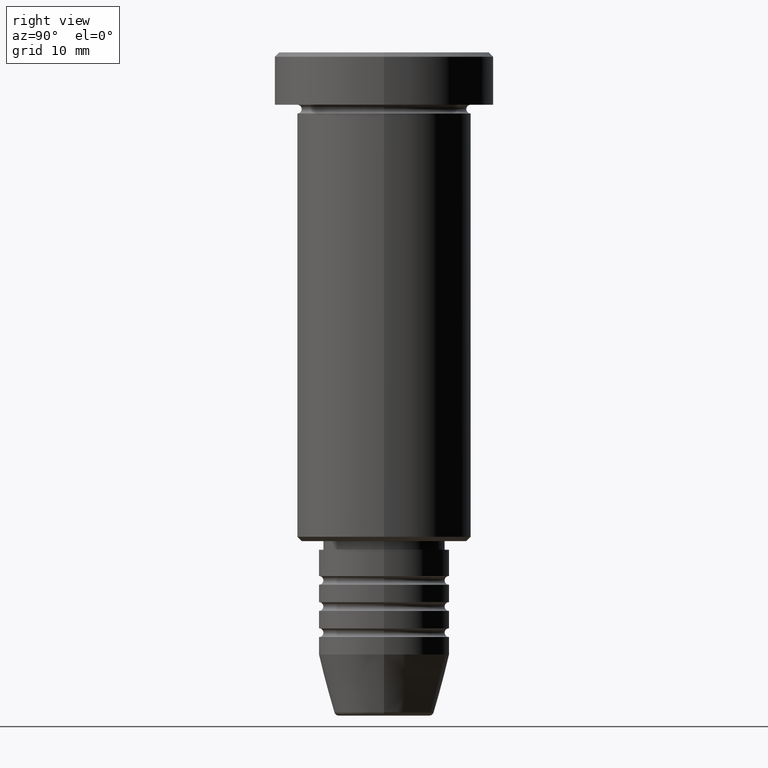
[diagram: clean part render]
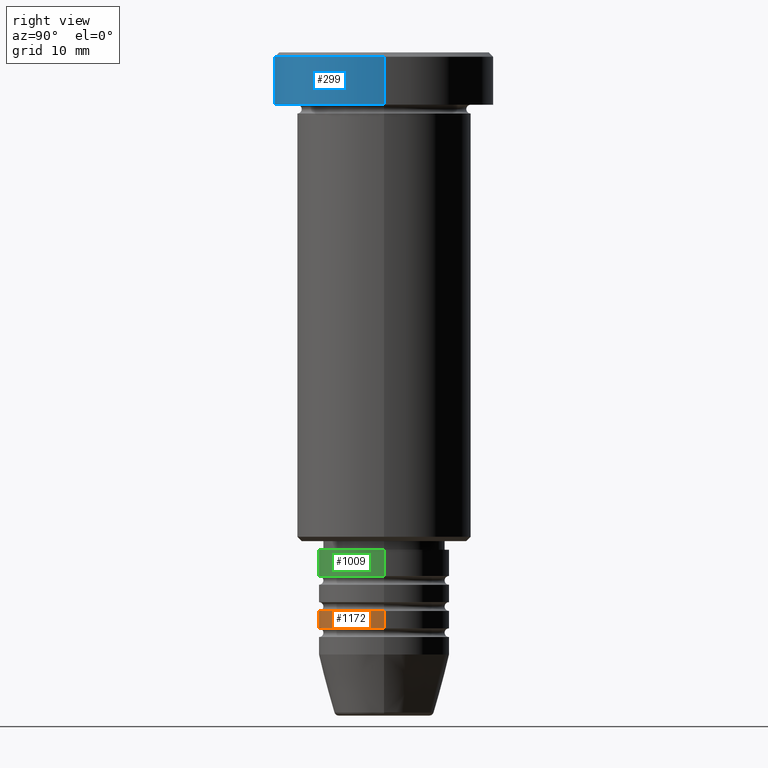
[diagram: same view with three faces highlighted in distinct colors, each labeled with its STEP entity id]
A machine part, right view with three faces highlighted in distinct colors.
Their STEP definitions:

[orange] entity #1172 — the highlighted cylindrical surface (partial cylindrical patch) has radius 7.5 mm, axis along (-0, -0, 1).
#13 = LINE ( 'NONE', #265, #1153 ) ;
#82 = DIRECTION ( 'NONE',  ( 1.000000000000000000, 0.000000000000000000, 0.000000000000000000 ) ) ;
#109 = CARTESIAN_POINT ( 'NONE',  ( 0.000000000000000000, 0.000000000000000000, -63.99999999999998579 ) ) ;
#161 = DIRECTION ( 'NONE',  ( -0.000000000000000000, -0.000000000000000000, 1.000000000000000000 ) ) ;
#165 = CARTESIAN_POINT ( 'NONE',  ( -7.500000000000000000, 9.184850993605147944E-16, -65.99999999999998579 ) ) ;
#172 = DIRECTION ( 'NONE',  ( -0.000000000000000000, -0.000000000000000000, 1.000000000000000000 ) ) ;
#198 = EDGE_CURVE ( 'NONE', #1083, #280, #1145, .T. ) ;
#219 = DIRECTION ( 'NONE',  ( 1.000000000000000000, 0.000000000000000000, 0.000000000000000000 ) ) ;
#265 = CARTESIAN_POINT ( 'NONE',  ( 7.500000000000000000, 0.000000000000000000, 0.000000000000000000 ) ) ;
#280 = VERTEX_POINT ( 'NONE', #675 ) ;
#282 = DIRECTION ( 'NONE',  ( -0.000000000000000000, -0.000000000000000000, 1.000000000000000000 ) ) ;
#319 = DIRECTION ( 'NONE',  ( -0.000000000000000000, -0.000000000000000000, 1.000000000000000000 ) ) ;
#328 = AXIS2_PLACEMENT_3D ( 'NONE', #489, #1033, #219 ) ;
#405 = AXIS2_PLACEMENT_3D ( 'NONE', #109, #282, #552 ) ;
#454 = FACE_OUTER_BOUND ( 'NONE', #782, .T. ) ;
#489 = CARTESIAN_POINT ( 'NONE',  ( 0.000000000000000000, 0.000000000000000000, -65.99999999999998579 ) ) ;
#501 = ORIENTED_EDGE ( 'NONE', *, *, #618, .T. ) ;
#534 = CIRCLE ( 'NONE', #405, 7.500000000000000000 ) ;
#552 = DIRECTION ( 'NONE',  ( 1.000000000000000000, 0.000000000000000000, 0.000000000000000000 ) ) ;
#591 = EDGE_CURVE ( 'NONE', #280, #1147, #534, .T. ) ;
#597 = VERTEX_POINT ( 'NONE', #920 ) ;
#618 = EDGE_CURVE ( 'NONE', #1083, #597, #674, .T. ) ;
#674 = CIRCLE ( 'NONE', #328, 7.500000000000000000 ) ;
#675 = CARTESIAN_POINT ( 'NONE',  ( -7.500000000000000000, 9.184850993605147944E-16, -63.99999999999998579 ) ) ;
#677 = AXIS2_PLACEMENT_3D ( 'NONE', #981, #172, #82 ) ;
#728 = CARTESIAN_POINT ( 'NONE',  ( 7.500000000000000000, 0.000000000000000000, -63.99999999999998579 ) ) ;
#782 = EDGE_LOOP ( 'NONE', ( #819, #501, #822, #972 ) ) ;
#819 = ORIENTED_EDGE ( 'NONE', *, *, #198, .F. ) ;
#822 = ORIENTED_EDGE ( 'NONE', *, *, #1107, .T. ) ;
#920 = CARTESIAN_POINT ( 'NONE',  ( 7.500000000000000000, 0.000000000000000000, -65.99999999999998579 ) ) ;
#972 = ORIENTED_EDGE ( 'NONE', *, *, #591, .F. ) ;
#981 = CARTESIAN_POINT ( 'NONE',  ( 0.000000000000000000, 0.000000000000000000, 0.000000000000000000 ) ) ;
#1033 = DIRECTION ( 'NONE',  ( -0.000000000000000000, -0.000000000000000000, 1.000000000000000000 ) ) ;
#1083 = VERTEX_POINT ( 'NONE', #165 ) ;
#1107 = EDGE_CURVE ( 'NONE', #597, #1147, #13, .T. ) ;
#1114 = VECTOR ( 'NONE', #319, 1000.000000000000000 ) ;
#1137 = CARTESIAN_POINT ( 'NONE',  ( -7.500000000000000000, 9.184850993605147944E-16, 0.000000000000000000 ) ) ;
#1145 = LINE ( 'NONE', #1137, #1114 ) ;
#1147 = VERTEX_POINT ( 'NONE', #728 ) ;
#1153 = VECTOR ( 'NONE', #161, 1000.000000000000000 ) ;
#1172 = ADVANCED_FACE ( 'NONE', ( #454 ), #1173, .T. ) ;
#1173 = CYLINDRICAL_SURFACE ( 'NONE', #677, 7.500000000000000000 ) ;

[blue] entity #299 — the highlighted cylindrical surface (partial cylindrical patch) has radius 12.5 mm, axis along (-0, -0, 1).
#19 = ORIENTED_EDGE ( 'NONE', *, *, #162, .T. ) ;
#61 = AXIS2_PLACEMENT_3D ( 'NONE', #526, #615, #257 ) ;
#124 = VECTOR ( 'NONE', #762, 1000.000000000000000 ) ;
#152 = ORIENTED_EDGE ( 'NONE', *, *, #1139, .F. ) ;
#162 = EDGE_CURVE ( 'NONE', #1051, #870, #975, .T. ) ;
#196 = ORIENTED_EDGE ( 'NONE', *, *, #1182, .T. ) ;
#231 = DIRECTION ( 'NONE',  ( 0.000000000000000000, 0.000000000000000000, -1.000000000000000000 ) ) ;
#257 = DIRECTION ( 'NONE',  ( 1.000000000000000000, 0.000000000000000000, 0.000000000000000000 ) ) ;
#270 = LINE ( 'NONE', #437, #425 ) ;
#299 = ADVANCED_FACE ( 'NONE', ( #427 ), #530, .T. ) ;
#317 = AXIS2_PLACEMENT_3D ( 'NONE', #711, #525, #363 ) ;
#344 = DIRECTION ( 'NONE',  ( -0.000000000000000000, -0.000000000000000000, 1.000000000000000000 ) ) ;
#363 = DIRECTION ( 'NONE',  ( 1.000000000000000000, 0.000000000000000000, 0.000000000000000000 ) ) ;
#410 = CARTESIAN_POINT ( 'NONE',  ( 0.000000000000000000, 0.000000000000000000, -0.4999999999999987232 ) ) ;
#423 = CARTESIAN_POINT ( 'NONE',  ( 12.50000000000000000, 0.000000000000000000, -0.4999999999999987232 ) ) ;
#425 = VECTOR ( 'NONE', #344, 1000.000000000000000 ) ;
#427 = FACE_OUTER_BOUND ( 'NONE', #798, .T. ) ;
#437 = CARTESIAN_POINT ( 'NONE',  ( -12.50000000000000000, 1.530808498934191521E-15, 0.000000000000000000 ) ) ;
#446 = VERTEX_POINT ( 'NONE', #833 ) ;
#522 = CIRCLE ( 'NONE', #317, 12.50000000000000000 ) ;
#525 = DIRECTION ( 'NONE',  ( -0.000000000000000000, -0.000000000000000000, 1.000000000000000000 ) ) ;
#526 = CARTESIAN_POINT ( 'NONE',  ( 0.000000000000000000, 0.000000000000000000, 0.000000000000000000 ) ) ;
#530 = CYLINDRICAL_SURFACE ( 'NONE', #61, 12.50000000000000000 ) ;
#535 = VERTEX_POINT ( 'NONE', #559 ) ;
#559 = CARTESIAN_POINT ( 'NONE',  ( 12.50000000000000000, 0.000000000000000000, -5.999999999999996447 ) ) ;
#564 = LINE ( 'NONE', #576, #124 ) ;
#570 = CARTESIAN_POINT ( 'NONE',  ( -12.50000000000000000, 1.530808498934191521E-15, -0.4999999999999987232 ) ) ;
#576 = CARTESIAN_POINT ( 'NONE',  ( 12.50000000000000000, 0.000000000000000000, 0.000000000000000000 ) ) ;
#615 = DIRECTION ( 'NONE',  ( -0.000000000000000000, -0.000000000000000000, 1.000000000000000000 ) ) ;
#691 = DIRECTION ( 'NONE',  ( 1.000000000000000000, 0.000000000000000000, 0.000000000000000000 ) ) ;
#711 = CARTESIAN_POINT ( 'NONE',  ( 0.000000000000000000, 0.000000000000000000, -5.999999999999996447 ) ) ;
#762 = DIRECTION ( 'NONE',  ( -0.000000000000000000, -0.000000000000000000, 1.000000000000000000 ) ) ;
#798 = EDGE_LOOP ( 'NONE', ( #152, #196, #988, #19 ) ) ;
#833 = CARTESIAN_POINT ( 'NONE',  ( -12.50000000000000000, 1.530808498934191521E-15, -5.999999999999996447 ) ) ;
#847 = EDGE_CURVE ( 'NONE', #535, #1051, #564, .T. ) ;
#864 = AXIS2_PLACEMENT_3D ( 'NONE', #410, #231, #691 ) ;
#870 = VERTEX_POINT ( 'NONE', #570 ) ;
#975 = CIRCLE ( 'NONE', #864, 12.50000000000000000 ) ;
#988 = ORIENTED_EDGE ( 'NONE', *, *, #847, .T. ) ;
#1051 = VERTEX_POINT ( 'NONE', #423 ) ;
#1139 = EDGE_CURVE ( 'NONE', #446, #870, #270, .T. ) ;
#1182 = EDGE_CURVE ( 'NONE', #446, #535, #522, .T. ) ;

[green] entity #1009 — the highlighted cylindrical surface (partial cylindrical patch) has radius 7.5 mm, axis along (-0, -0, 1).
#55 = VERTEX_POINT ( 'NONE', #120 ) ;
#78 = VECTOR ( 'NONE', #508, 1000.000000000000000 ) ;
#83 = EDGE_LOOP ( 'NONE', ( #320, #751, #1010, #694 ) ) ;
#91 = VERTEX_POINT ( 'NONE', #202 ) ;
#105 = CIRCLE ( 'NONE', #888, 7.500000000000000000 ) ;
#113 = DIRECTION ( 'NONE',  ( -0.000000000000000000, -0.000000000000000000, 1.000000000000000000 ) ) ;
#120 = CARTESIAN_POINT ( 'NONE',  ( -7.500000000000000000, 9.184850993605147944E-16, -59.99999999999998579 ) ) ;
#150 = FACE_OUTER_BOUND ( 'NONE', #83, .T. ) ;
#157 = AXIS2_PLACEMENT_3D ( 'NONE', #641, #1084, #450 ) ;
#197 = CARTESIAN_POINT ( 'NONE',  ( 7.500000000000000000, 0.000000000000000000, -59.99999999999998579 ) ) ;
#202 = CARTESIAN_POINT ( 'NONE',  ( 7.500000000000000000, 0.000000000000000000, -57.00000000000000711 ) ) ;
#229 = LINE ( 'NONE', #399, #316 ) ;
#316 = VECTOR ( 'NONE', #113, 1000.000000000000000 ) ;
#320 = ORIENTED_EDGE ( 'NONE', *, *, #797, .F. ) ;
#339 = CARTESIAN_POINT ( 'NONE',  ( 7.500000000000000000, 0.000000000000000000, 0.000000000000000000 ) ) ;
#370 = CIRCLE ( 'NONE', #157, 7.500000000000000000 ) ;
#399 = CARTESIAN_POINT ( 'NONE',  ( -7.500000000000000000, 9.184850993605147944E-16, 0.000000000000000000 ) ) ;
#448 = DIRECTION ( 'NONE',  ( -0.000000000000000000, -0.000000000000000000, 1.000000000000000000 ) ) ;
#450 = DIRECTION ( 'NONE',  ( 1.000000000000000000, 0.000000000000000000, 0.000000000000000000 ) ) ;
#508 = DIRECTION ( 'NONE',  ( -0.000000000000000000, -0.000000000000000000, 1.000000000000000000 ) ) ;
#520 = LINE ( 'NONE', #339, #78 ) ;
#641 = CARTESIAN_POINT ( 'NONE',  ( 0.000000000000000000, 0.000000000000000000, -59.99999999999998579 ) ) ;
#694 = ORIENTED_EDGE ( 'NONE', *, *, #1151, .F. ) ;
#700 = VERTEX_POINT ( 'NONE', #197 ) ;
#710 = EDGE_CURVE ( 'NONE', #55, #700, #370, .T. ) ;
#737 = CARTESIAN_POINT ( 'NONE',  ( -7.500000000000000000, 9.184850993605147944E-16, -57.00000000000000711 ) ) ;
#751 = ORIENTED_EDGE ( 'NONE', *, *, #710, .T. ) ;
#797 = EDGE_CURVE ( 'NONE', #55, #1157, #229, .T. ) ;
#871 = CARTESIAN_POINT ( 'NONE',  ( 0.000000000000000000, 0.000000000000000000, 0.000000000000000000 ) ) ;
#888 = AXIS2_PLACEMENT_3D ( 'NONE', #903, #448, #916 ) ;
#903 = CARTESIAN_POINT ( 'NONE',  ( 0.000000000000000000, 0.000000000000000000, -57.00000000000000711 ) ) ;
#904 = AXIS2_PLACEMENT_3D ( 'NONE', #871, #964, #1148 ) ;
#916 = DIRECTION ( 'NONE',  ( 1.000000000000000000, 0.000000000000000000, 0.000000000000000000 ) ) ;
#964 = DIRECTION ( 'NONE',  ( -0.000000000000000000, -0.000000000000000000, 1.000000000000000000 ) ) ;
#1001 = EDGE_CURVE ( 'NONE', #700, #91, #520, .T. ) ;
#1009 = ADVANCED_FACE ( 'NONE', ( #150 ), #1156, .T. ) ;
#1010 = ORIENTED_EDGE ( 'NONE', *, *, #1001, .T. ) ;
#1084 = DIRECTION ( 'NONE',  ( -0.000000000000000000, -0.000000000000000000, 1.000000000000000000 ) ) ;
#1148 = DIRECTION ( 'NONE',  ( 1.000000000000000000, 0.000000000000000000, 0.000000000000000000 ) ) ;
#1151 = EDGE_CURVE ( 'NONE', #1157, #91, #105, .T. ) ;
#1156 = CYLINDRICAL_SURFACE ( 'NONE', #904, 7.500000000000000000 ) ;
#1157 = VERTEX_POINT ( 'NONE', #737 ) ;